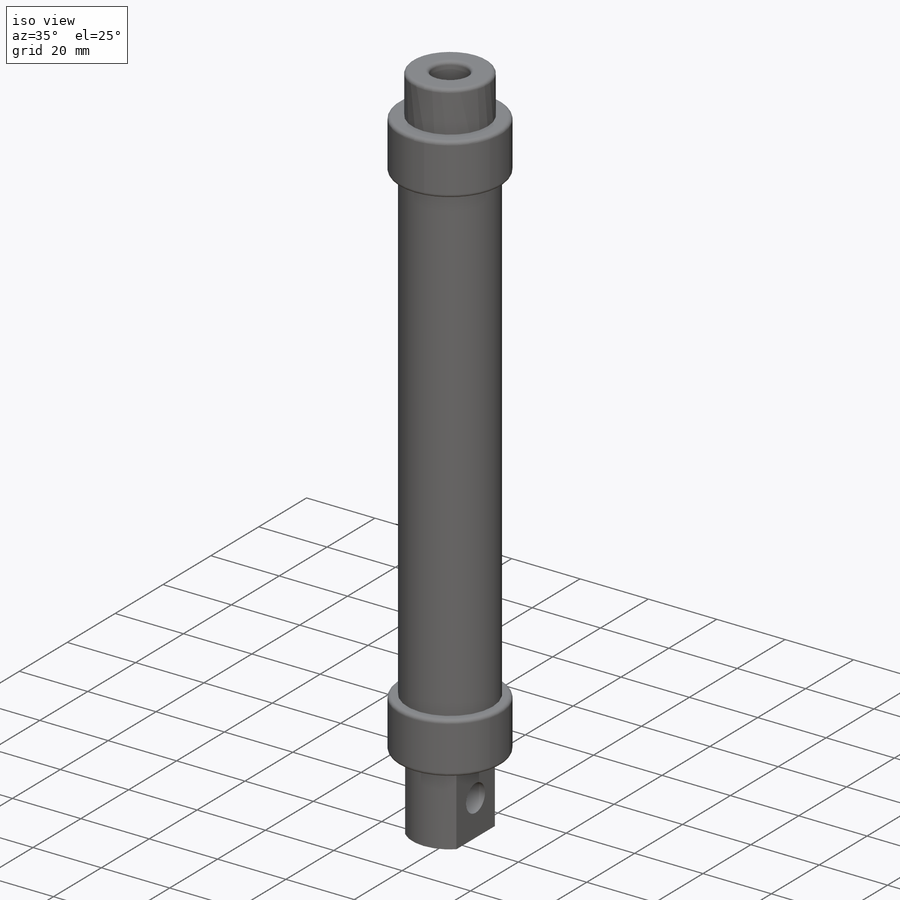
[diagram: iso view]
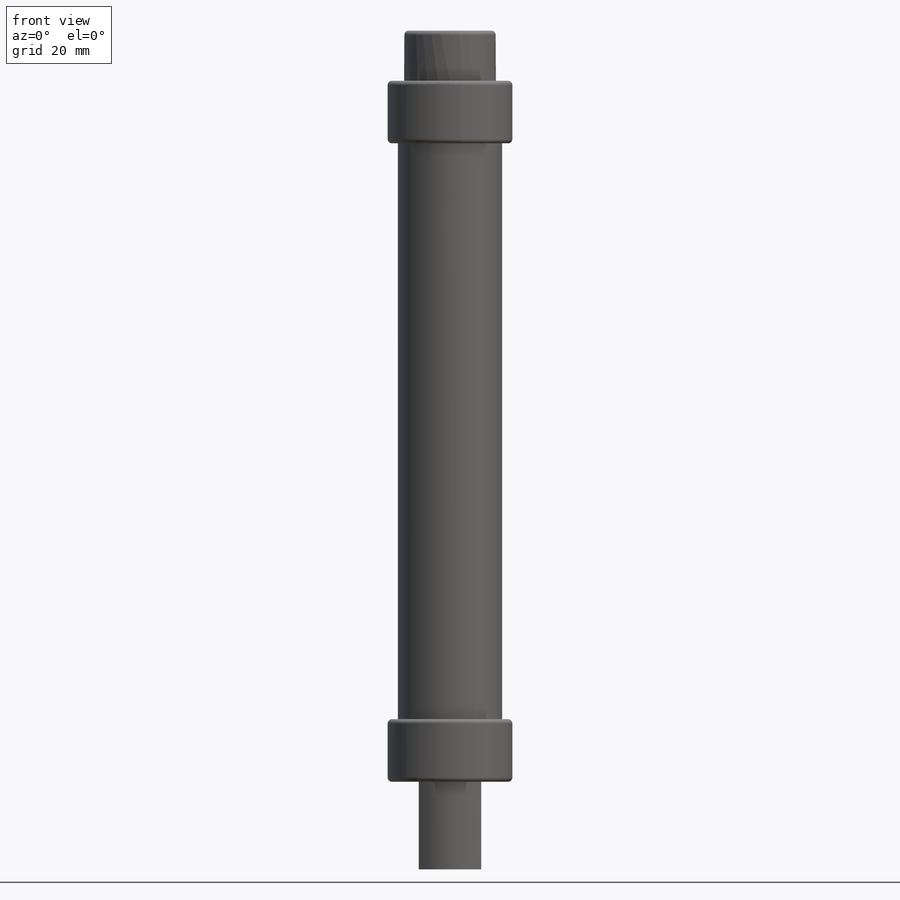
[diagram: front view]
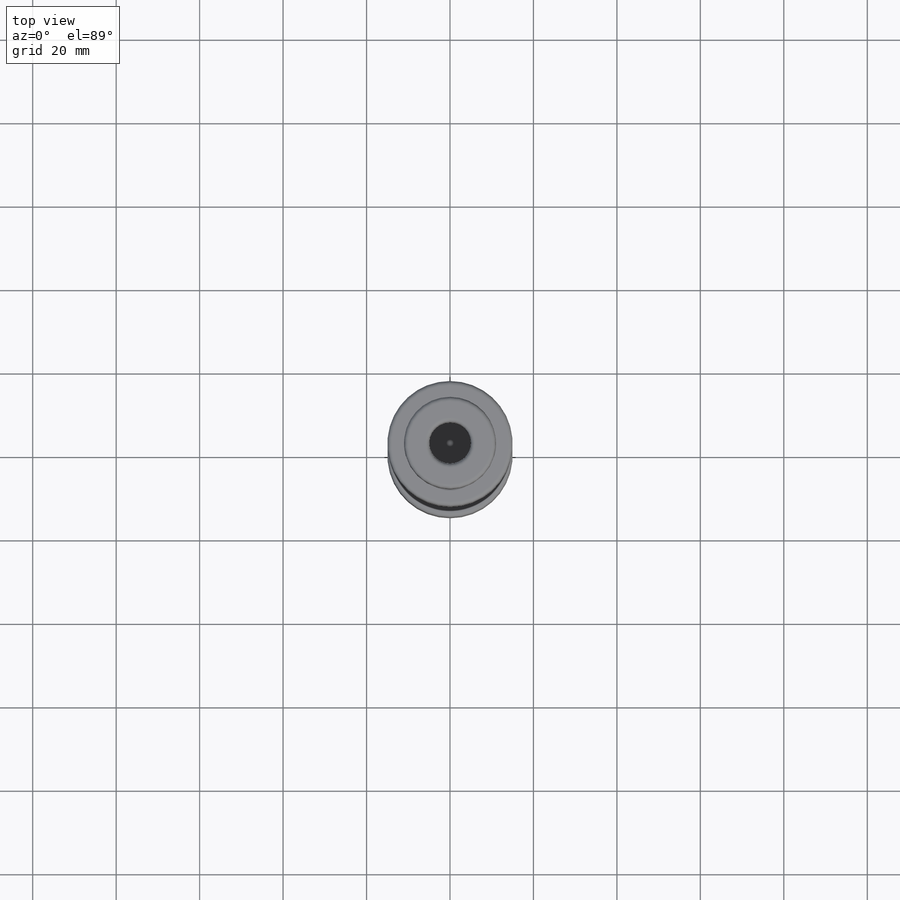
[diagram: top view]
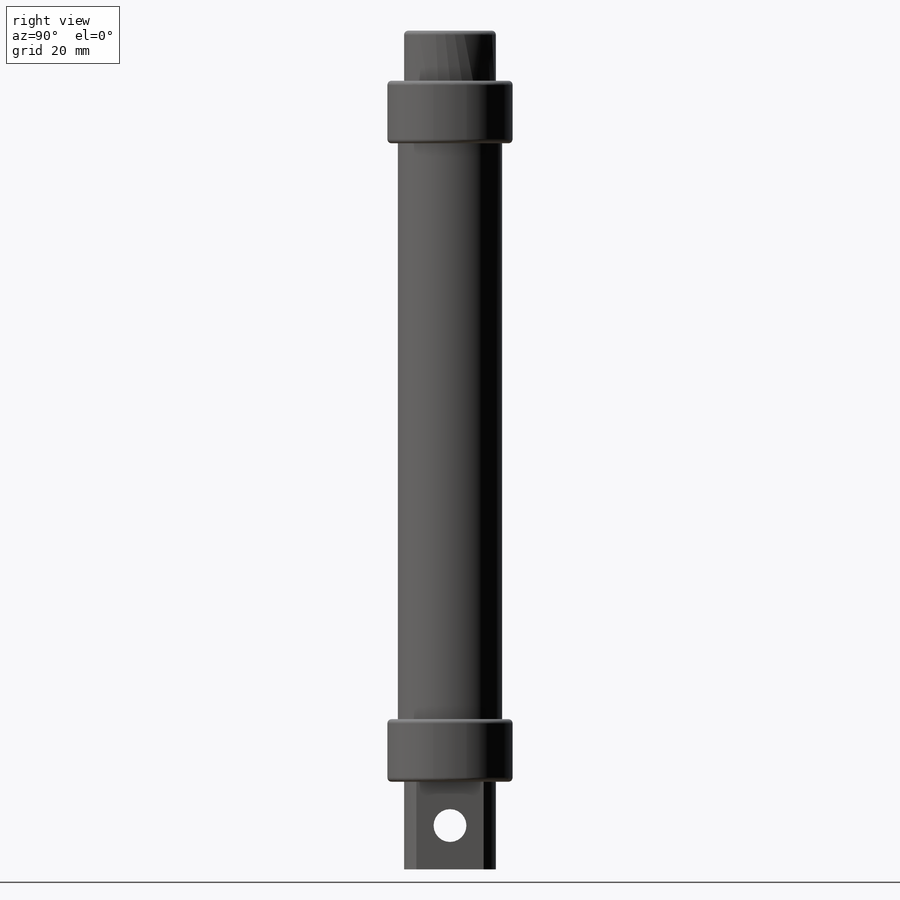
[diagram: right view]
SOLIDWORKS PART (.sldprt)
format: sldprt  version: not decoded by parser v0  size: 299,008 bytes
history: native  units: mm
features: sketch x10, extrude x7, fillet x6, cut_extrude x3, material x1 (+12 scaffold rows collapsed)
feature tree (39):
  scaffold x12  (default folders/planes/origin — collapsed)
  material  "Material <not specified>"
  sketch  "Sketch5"  dims[D1=25.0mm D2=2.0mm]
  extrude  "Boss-Extrude2"  Depth=140mm
  sketch  "Sketch6"  dims[D1=30.0mm]
  extrude  "Boss-Extrude3"  Depth=14mm
  sketch  "Sketch7"  dims[D1=30.0mm]
  extrude  "Boss-Extrude4"  Depth=14mm
  fillet  "Fillet1"  Radius=1mm
  fillet  "Fillet2"  Radius=1mm
  fillet  "Fillet3"  Radius=1mm
  fillet  "Fillet4"  Radius=1mm
  sketch  "Sketch8"
  extrude  "Boss-Extrude5"  Depth=1mm
  sketch  "Sketch9"
  extrude  "Boss-Extrude6"  Depth=1mm
  sketch  "Sketch10"  dims[D1=22.0mm]
  extrude  "Boss-Extrude7"  Depth=21mm
  sketch  "Sketch11"  dims[D2=22.0mm D1=7.5mm D3=~8.046738mm D4=~8.046738mm]
  cut_extrude  "Cut-Extrude1"  Depth=21mm
  sketch  "Sketch12"  dims[D1=7.87mm]
  cut_extrude  "Cut-Extrude2"  [1 undecoded]
  sketch  "Sketch13"  dims[D1=22.0mm]
  extrude  "Boss-Extrude8"  Depth=12mm
  sketch  "Sketch14"  dims[D1=10.0mm]
  cut_extrude  "Cut-Extrude3"  Depth=20mm
  fillet  "Fillet5"  Radius=1mm
  fillet  "Fillet6"  Radius=1mm
decode coverage: 23 of 26 modeling features carry decoded parameters
note: ~ marks probable driven/reference dimensions
note: 1 parameter value undecoded
note: suppression state not decoded; provenance and decode notes live in map.json
